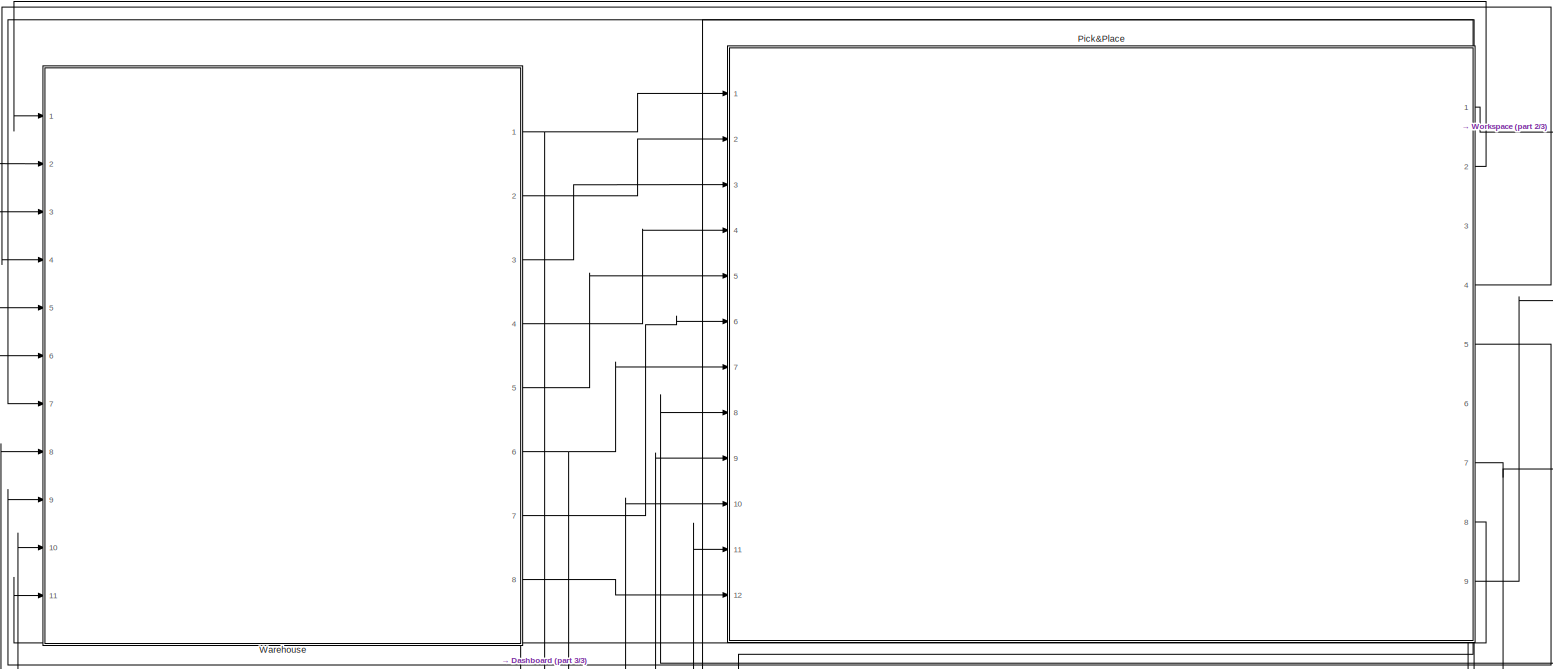
[diagram: root canvas - part 1/3, full width, top band]
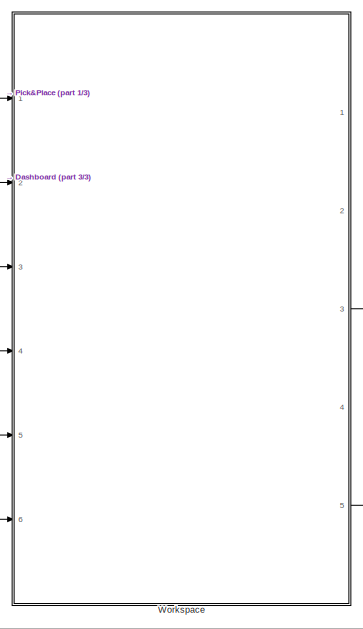
[diagram: root canvas - part 2/3, top right region]
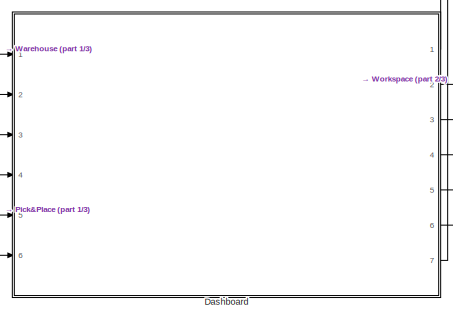
[diagram: root canvas - part 3/3, bottom center region]
MODEL slx_5a5e4ed08772
KIND model
CONFIG AbsTol = auto
CONFIG EnableMultiTasking = off
CONFIG FixedStep = auto
CONFIG MaxStep = auto
CONFIG MinStep = auto
CONFIG RelTol = 1e-3
CONFIG SampleTimeConstraint = Unconstrained
CONFIG Solver = VariableStepAuto
CONFIG SolverName = VariableStepAuto
CONFIG StartTime = 0.0
CONFIG StopTime = inf
BLOCK [ModelReference] Dashboard
  ModelNameDialog = Dashboard
  ModelReferenceVersion = 1.6
  PortSchema = {"entries":[{"content":{"headerSize":38,"margin":15,"minimumSpacing":25,"sides":[{"content":{"connectorIds":["In1","In2","In3","In4","In5","In6"]},"type":"ConnectorPlacement.EquallySpacedRectSide","uuid":"84c4e9a6-c7e3-4ff5-8779-8f22ff7ec920"},{"content":{"connectorIds":["Out1","Out2","Out3","Out4","Out5","Out6","Out7"],"side":"RIGHT"},"type":"ConnectorPlacement.EquallySpacedRectSide","uuid":"3a85...<+367ch>
  Ports = [6, 7]
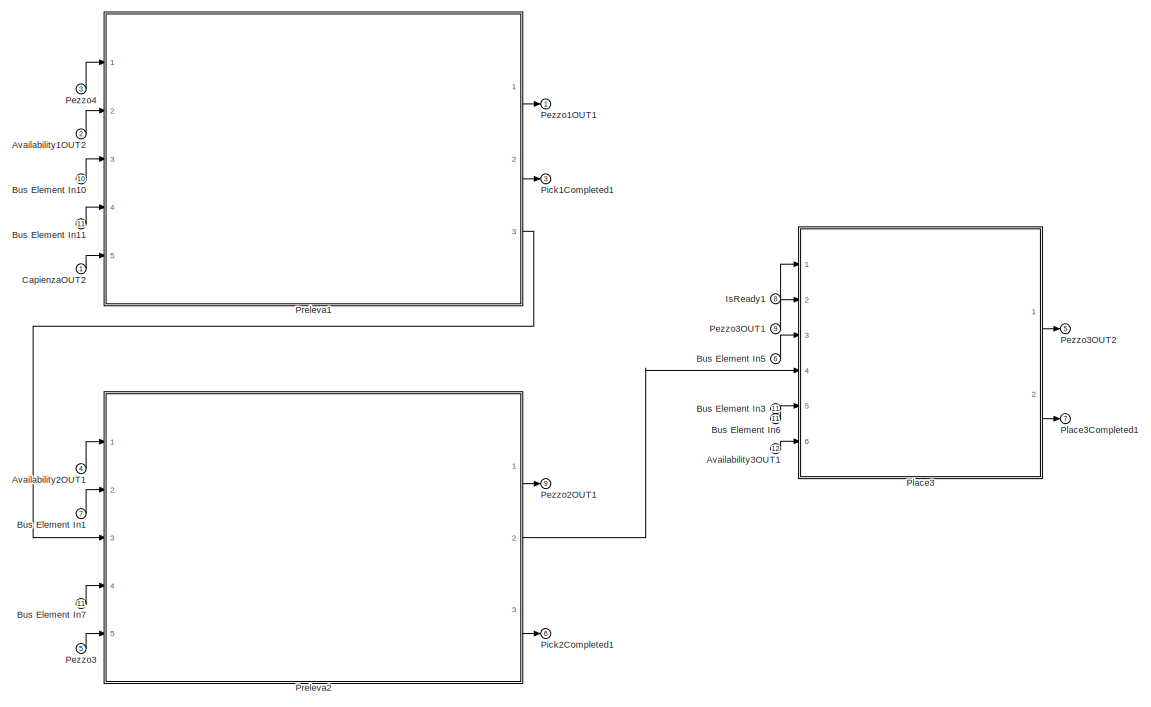
[diagram: Pick&Place - part 1/2, center side, full height]
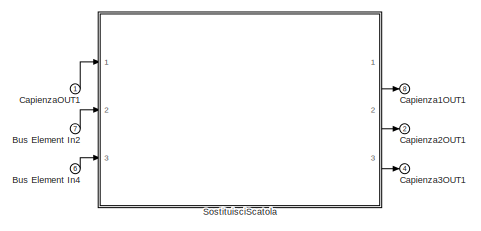
[diagram: Pick&Place - part 2/2, middle right region]
BLOCK [SubSystem] Pick&Place
  PortSchema = {"entries":[{"content":{"headerSize":26,"margin":15,"minimumSpacing":25,"sides":[{"content":{"connectorIds":["In1","In2","In3","In4","In5","In6","In7","In8","In9","In10","In11","In12"]},"type":"ConnectorPlacement.EquallySpacedRectSide","uuid":"cd5611c0-8a30-4803-bae5-8792d5ed3138"},{"content":{"connectorIds":["Out1","Out2","Out3","Out4","Out5","Out6","Out7","Out8","Out9"],"side":"RIGHT"},"type":"C...<+564ch>
  Ports = [12, 9]
  RequestExecContextInheritance = off
BLOCK [Inport] Pick&Place/Availability1OUT2
  IconDisplay = Port number
  Port = 2
BLOCK [Inport] Pick&Place/Availability2OUT1
  IconDisplay = Port number
  Port = 4
BLOCK [Inport] Pick&Place/Availability3OUT1
  IconDisplay = Port number
  Port = 12
BLOCK [Inport] Pick&Place/Bus Element In1
  IconDisplay = Port number
  Port = 7
BLOCK [Inport] Pick&Place/Bus Element In10
  IconDisplay = Port number
  Port = 10
BLOCK [Inport] Pick&Place/Bus Element In11
  IconDisplay = Port number
  Port = 11
BLOCK [Inport] Pick&Place/Bus Element In2
  IconDisplay = Port number
  Port = 7
BLOCK [Inport] Pick&Place/Bus Element In3
  IconDisplay = Port number
  Port = 11
BLOCK [Inport] Pick&Place/Bus Element In4
  IconDisplay = Port number
  Port = 6
BLOCK [Inport] Pick&Place/Bus Element In5
  IconDisplay = Port number
  Port = 6
BLOCK [Inport] Pick&Place/Bus Element In6
  IconDisplay = Port number
  Port = 11
BLOCK [Inport] Pick&Place/Bus Element In7
  IconDisplay = Port number
  Port = 11
BLOCK [Outport] Pick&Place/Capienza1OUT1
  IconDisplay = Port number
  Port = 8
BLOCK [Outport] Pick&Place/Capienza2OUT1
  IconDisplay = Port number
  Port = 2
BLOCK [Outport] Pick&Place/Capienza3OUT1
  IconDisplay = Port number
  Port = 4
BLOCK [Inport] Pick&Place/CapienzaOUT1
  IconDisplay = Port number
BLOCK [Inport] Pick&Place/CapienzaOUT2
  IconDisplay = Port number
BLOCK [Inport] Pick&Place/IsReady1
  IconDisplay = Port number
  Port = 8
BLOCK [Outport] Pick&Place/Pezzo1OUT1
  IconDisplay = Port number
BLOCK [Outport] Pick&Place/Pezzo2OUT1
  IconDisplay = Port number
  Port = 9
BLOCK [Inport] Pick&Place/Pezzo3
  IconDisplay = Port number
  Port = 5
BLOCK [Inport] Pick&Place/Pezzo3OUT1
  IconDisplay = Port number
  Port = 9
BLOCK [Outport] Pick&Place/Pezzo3OUT2
  IconDisplay = Port number
  Port = 5
BLOCK [Inport] Pick&Place/Pezzo4
  IconDisplay = Port number
  Port = 3
BLOCK [Outport] Pick&Place/Pick1Completed1
  IconDisplay = Port number
  Port = 3
BLOCK [Outport] Pick&Place/Pick2Completed1
  IconDisplay = Port number
  Port = 6
BLOCK [ModelReference] Pick&Place/Place3
  ModelNameDialog = Place3
  ModelReferenceVersion = 1.4
  PortSchema = {"entries":[{"content":{"headerSize":38,"margin":15,"minimumSpacing":25,"sides":[{"content":{"connectorIds":["In1","In2","In3","In4","In5","In6"]},"type":"ConnectorPlacement.EquallySpacedRectSide","uuid":"9a4f82f2-5965-44d2-974e-41fbc79ae372"},{"content":{"connectorIds":["Out1","Out2"],"side":"RIGHT"},"type":"ConnectorPlacement.EquallySpacedRectSide","uuid":"61351877-5afa-4df0-ac37-90524965d9bf"},...<+332ch>
  Ports = [6, 2]
BLOCK [Outport] Pick&Place/Place3Completed1
  IconDisplay = Port number
  Port = 7
BLOCK [ModelReference] Pick&Place/Preleva1
  ModelNameDialog = Preleva1
  ModelReferenceVersion = 1.4
  PortSchema = {"entries":[{"content":{"headerSize":38,"margin":15,"minimumSpacing":25,"sides":[{"content":{"connectorIds":["In1","In2","In3","In4","In5"]},"type":"ConnectorPlacement.EquallySpacedRectSide","uuid":"9a4f82f2-5965-44d2-974e-41fbc79ae372"},{"content":{"connectorIds":["Out1","Out2","Out3"],"side":"RIGHT"},"type":"ConnectorPlacement.EquallySpacedRectSide","uuid":"61351877-5afa-4df0-ac37-90524965d9bf"}...<+333ch>
  Ports = [5, 3]
BLOCK [ModelReference] Pick&Place/Preleva2
  ModelNameDialog = Preleva2
  ModelReferenceVersion = 1.4
  PortSchema = {"entries":[{"content":{"headerSize":38,"margin":15,"minimumSpacing":25,"sides":[{"content":{"connectorIds":["In1","In2","In3","In4","In5"]},"type":"ConnectorPlacement.EquallySpacedRectSide","uuid":"9a4f82f2-5965-44d2-974e-41fbc79ae372"},{"content":{"connectorIds":["Out1","Out2","Out3"],"side":"RIGHT"},"type":"ConnectorPlacement.EquallySpacedRectSide","uuid":"61351877-5afa-4df0-ac37-90524965d9bf"}...<+333ch>
  Ports = [5, 3]
BLOCK [ModelReference] Pick&Place/SostituisciScatola
  ModelNameDialog = SostituisciScatola
  ModelReferenceVersion = 1.4
  PortSchema = {"entries":[{"content":{"headerSize":38,"margin":15,"minimumSpacing":25,"sides":[{"content":{"connectorIds":["In1","In2","In3"]},"type":"ConnectorPlacement.EquallySpacedRectSide","uuid":"3b3968ce-44ce-4ff1-b340-b6df1f6f3847"},{"content":{"connectorIds":["Out1","Out2","Out3"],"side":"RIGHT"},"type":"ConnectorPlacement.EquallySpacedRectSide","uuid":"732ea1f5-375c-4ad6-872e-d3b4542e6ff4"},{"content":...<+321ch>
  Ports = [3, 3]
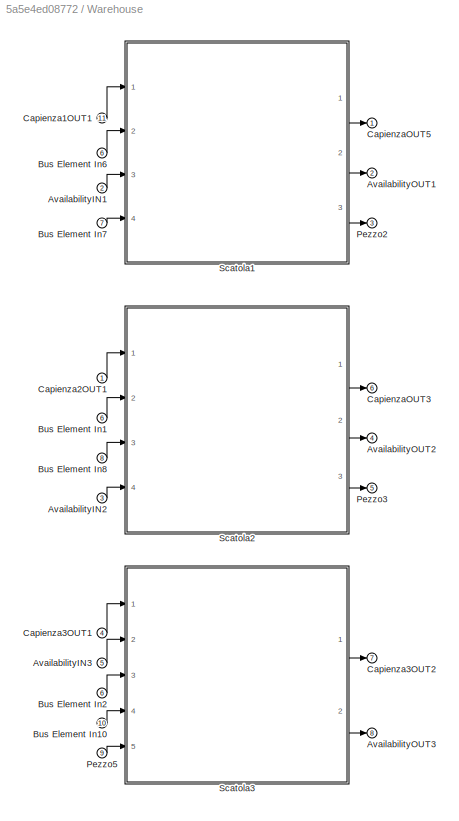
BLOCK [SubSystem] Warehouse
  PortSchema = {"entries":[{"content":{"headerSize":26,"margin":15,"minimumSpacing":25,"sides":[{"content":{"connectorIds":["In1","In2","In3","In4","In5","In6","In7","In8","In9","In10","In11"]},"type":"ConnectorPlacement.EquallySpacedRectSide","uuid":"cd5611c0-8a30-4803-bae5-8792d5ed3138"},{"content":{"connectorIds":["Out1","Out2","Out3","Out4","Out5","Out6","Out7","Out8"],"side":"RIGHT"},"type":"ConnectorPlacem...<+406ch>
  Ports = [11, 8]
  RequestExecContextInheritance = off
BLOCK [Inport] Warehouse/AvailabilityIN1
  IconDisplay = Port number
  Port = 2
BLOCK [Inport] Warehouse/AvailabilityIN2
  IconDisplay = Port number
  Port = 3
BLOCK [Inport] Warehouse/AvailabilityIN3
  IconDisplay = Port number
  Port = 5
BLOCK [Outport] Warehouse/AvailabilityOUT1
  IconDisplay = Port number
  Port = 2
BLOCK [Outport] Warehouse/AvailabilityOUT2
  IconDisplay = Port number
  Port = 4
BLOCK [Outport] Warehouse/AvailabilityOUT3
  IconDisplay = Port number
  Port = 8
BLOCK [Inport] Warehouse/Bus Element In1
  IconDisplay = Port number
  Port = 6
BLOCK [Inport] Warehouse/Bus Element In10
  IconDisplay = Port number
  Port = 10
BLOCK [Inport] Warehouse/Bus Element In2
  IconDisplay = Port number
  Port = 6
BLOCK [Inport] Warehouse/Bus Element In6
  IconDisplay = Port number
  Port = 6
BLOCK [Inport] Warehouse/Bus Element In7
  IconDisplay = Port number
  Port = 7
BLOCK [Inport] Warehouse/Bus Element In8
  IconDisplay = Port number
  Port = 8
BLOCK [Inport] Warehouse/Capienza1OUT1
  IconDisplay = Port number
  Port = 11
BLOCK [Inport] Warehouse/Capienza2OUT1
  IconDisplay = Port number
BLOCK [Inport] Warehouse/Capienza3OUT1
  IconDisplay = Port number
  Port = 4
BLOCK [Outport] Warehouse/Capienza3OUT2
  IconDisplay = Port number
  Port = 7
BLOCK [Outport] Warehouse/CapienzaOUT3
  IconDisplay = Port number
  Port = 6
BLOCK [Outport] Warehouse/CapienzaOUT5
  IconDisplay = Port number
BLOCK [Outport] Warehouse/Pezzo2
  IconDisplay = Port number
  Port = 3
BLOCK [Outport] Warehouse/Pezzo3
  IconDisplay = Port number
  Port = 5
BLOCK [Inport] Warehouse/Pezzo5
  IconDisplay = Port number
  Port = 9
BLOCK [ModelReference] Warehouse/Scatola1
  ModelNameDialog = Scatola1
  ModelReferenceVersion = 1.4
  PortSchema = {"entries":[{"content":{"headerSize":38,"margin":15,"minimumSpacing":25,"sides":[{"content":{"connectorIds":["In1","In2","In3","In4"]},"type":"ConnectorPlacement.EquallySpacedRectSide","uuid":"8ca3f795-bcf3-41f9-ab0e-0c7be44eb4b6"},{"content":{"connectorIds":["Out1","Out2","Out3"],"side":"RIGHT"},"type":"ConnectorPlacement.EquallySpacedRectSide","uuid":"3b3dc70a-b452-493d-8b71-47a0b7c01cc2"},{"con...<+327ch>
  Ports = [4, 3]
BLOCK [ModelReference] Warehouse/Scatola2
  ModelNameDialog = Scatola2
  ModelReferenceVersion = 1.3
  PortSchema = {"entries":[{"content":{"headerSize":38,"margin":15,"minimumSpacing":25,"sides":[{"content":{"connectorIds":["In1","In2","In3","In4"]},"type":"ConnectorPlacement.EquallySpacedRectSide","uuid":"cd5611c0-8a30-4803-bae5-8792d5ed3138"},{"content":{"connectorIds":["Out1","Out2","Out3"],"side":"RIGHT"},"type":"ConnectorPlacement.EquallySpacedRectSide","uuid":"19615e04-708c-4dc8-9217-130af3d4c815"},{"con...<+327ch>
  Ports = [4, 3]
BLOCK [ModelReference] Warehouse/Scatola3
  ModelNameDialog = Scatola3
  ModelReferenceVersion = 1.3
  PortSchema = {"entries":[{"content":{"headerSize":38,"margin":15,"minimumSpacing":25,"sides":[{"content":{"connectorIds":["In1","In2","In3","In4","In5"]},"type":"ConnectorPlacement.EquallySpacedRectSide","uuid":"cd5611c0-8a30-4803-bae5-8792d5ed3138"},{"content":{"connectorIds":["Out1","Out2"],"side":"RIGHT"},"type":"ConnectorPlacement.EquallySpacedRectSide","uuid":"19615e04-708c-4dc8-9217-130af3d4c815"},{"cont...<+326ch>
  Ports = [5, 2]
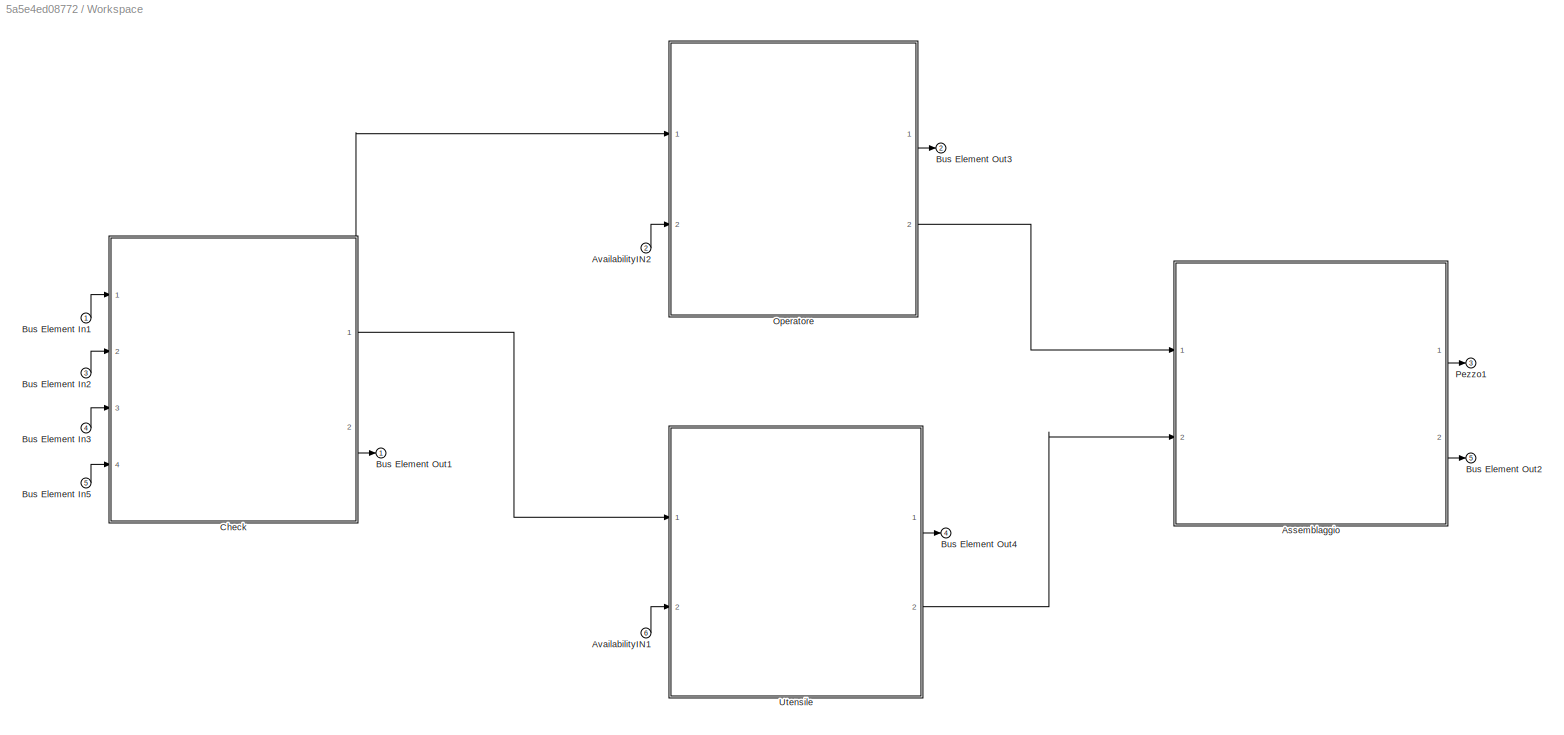
BLOCK [SubSystem] Workspace
  PortSchema = {"entries":[{"content":{"headerSize":26,"margin":15,"minimumSpacing":25,"sides":[{"content":{"connectorIds":["In1","In2","In3","In4","In5","In6"]},"type":"ConnectorPlacement.EquallySpacedRectSide","uuid":"cd5611c0-8a30-4803-bae5-8792d5ed3138"},{"content":{"connectorIds":["Out1","Out2","Out3","Out4","Out5"],"side":"RIGHT"},"type":"ConnectorPlacement.EquallySpacedRectSide","uuid":"19615e04-708c-4dc8...<+353ch>
  Ports = [6, 5]
  RequestExecContextInheritance = off
BLOCK [ModelReference] Workspace/Assemblaggio
  ModelNameDialog = Assemblaggio
  ModelReferenceVersion = 1.2
  PortSchema = {"entries":[{"content":{"headerSize":38,"margin":15,"minimumSpacing":25,"sides":[{"content":{"connectorIds":["In1","In2"]},"type":"ConnectorPlacement.EquallySpacedRectSide","uuid":"cd5611c0-8a30-4803-bae5-8792d5ed3138"},{"content":{"connectorIds":["Out1","Out2"],"side":"RIGHT"},"type":"ConnectorPlacement.EquallySpacedRectSide","uuid":"19615e04-708c-4dc8-9217-130af3d4c815"},{"content":{"connectorId...<+308ch>  <repeated x3 — deduplicated; at blocks: Assemblaggio, Operatore, Utensile>
  Ports = [2, 2]
BLOCK [Inport] Workspace/AvailabilityIN1
  IconDisplay = Port number
  Port = 6
BLOCK [Inport] Workspace/AvailabilityIN2
  IconDisplay = Port number
  Port = 2
BLOCK [Inport] Workspace/Bus Element In1
  IconDisplay = Port number
BLOCK [Inport] Workspace/Bus Element In2
  IconDisplay = Port number
  Port = 3
BLOCK [Inport] Workspace/Bus Element In3
  IconDisplay = Port number
  Port = 4
BLOCK [Inport] Workspace/Bus Element In5
  IconDisplay = Port number
  Port = 5
BLOCK [Outport] Workspace/Bus Element Out1
  IconDisplay = Port number
BLOCK [Outport] Workspace/Bus Element Out2
  IconDisplay = Port number
  Port = 5
BLOCK [Outport] Workspace/Bus Element Out3
  IconDisplay = Port number
  Port = 2
BLOCK [Outport] Workspace/Bus Element Out4
  IconDisplay = Port number
  Port = 4
BLOCK [ModelReference] Workspace/Check
  ModelNameDialog = Check
  ModelReferenceVersion = 1.3
  PortSchema = {"entries":[{"content":{"headerSize":38,"margin":15,"minimumSpacing":25,"sides":[{"content":{"connectorIds":["In1","In2","In3","In4"]},"type":"ConnectorPlacement.EquallySpacedRectSide","uuid":"cd5611c0-8a30-4803-bae5-8792d5ed3138"},{"content":{"connectorIds":["Out1","Out2"],"side":"RIGHT"},"type":"ConnectorPlacement.EquallySpacedRectSide","uuid":"19615e04-708c-4dc8-9217-130af3d4c815"},{"content":{...<+320ch>
  Ports = [4, 2]
BLOCK [ModelReference] Workspace/Operatore
  ModelNameDialog = Operatore
  ModelReferenceVersion = 1.2
  Ports = [2, 2]
BLOCK [Outport] Workspace/Pezzo1
  IconDisplay = Port number
  Port = 3
BLOCK [ModelReference] Workspace/Utensile
  ModelNameDialog = Utensile
  ModelReferenceVersion = 1.2
  Ports = [2, 2]
LINE Dashboard:1 -> Pick&Place:11
LINE Dashboard:2 -> Workspace:2
LINE Dashboard:3 -> Warehouse:2
LINE Dashboard:4 -> Warehouse:3
LINE Dashboard:5 -> Workspace:6
LINE Dashboard:6 -> Workspace:4
LINE Dashboard:7 -> Warehouse:5
LINE Pick&Place/Availability1OUT2:1 -> Pick&Place/Preleva1:2
LINE Pick&Place/Availability2OUT1:1 -> Pick&Place/Preleva2:1
LINE Pick&Place/Availability3OUT1:1 -> Pick&Place/Place3:6
LINE Pick&Place/Bus Element In10:1 -> Pick&Place/Preleva1:3
LINE Pick&Place/Bus Element In11:1 -> Pick&Place/Preleva1:4
LINE Pick&Place/Bus Element In1:1 -> Pick&Place/Preleva2:2
LINE Pick&Place/Bus Element In2:1 -> Pick&Place/SostituisciScatola:2
LINE Pick&Place/Bus Element In4:1 -> Pick&Place/SostituisciScatola:3
LINE Pick&Place/Bus Element In5:1 -> Pick&Place/Place3:3
LINE Pick&Place/Bus Element In6:1 -> Pick&Place/Place3:5
LINE Pick&Place/Bus Element In7:1 -> Pick&Place/Preleva2:4
LINE Pick&Place/CapienzaOUT1:1 -> Pick&Place/SostituisciScatola:1
LINE Pick&Place/CapienzaOUT2:1 -> Pick&Place/Preleva1:5
LINE Pick&Place/IsReady1:1 -> Pick&Place/Place3:1
LINE Pick&Place/Pezzo3:1 -> Pick&Place/Preleva2:5
LINE Pick&Place/Pezzo3OUT1:1 -> Pick&Place/Place3:2
LINE Pick&Place/Pezzo4:1 -> Pick&Place/Preleva1:1
LINE Pick&Place/Place3:1 -> Pick&Place/Pezzo3OUT2:1
LINE Pick&Place/Place3:2 -> Pick&Place/Place3Completed1:1
LINE Pick&Place/Preleva1:1 -> Pick&Place/Pezzo1OUT1:1
LINE Pick&Place/Preleva1:2 -> Pick&Place/Pick1Completed1:1
LINE Pick&Place/Preleva1:3 -> Pick&Place/Preleva2:3
LINE Pick&Place/Preleva2:1 -> Pick&Place/Pezzo2OUT1:1
LINE Pick&Place/Preleva2:2 -> Pick&Place/Place3:4
LINE Pick&Place/Preleva2:3 -> Pick&Place/Pick2Completed1:1
LINE Pick&Place/SostituisciScatola:1 -> Pick&Place/Capienza1OUT1:1
LINE Pick&Place/SostituisciScatola:2 -> Pick&Place/Capienza2OUT1:1
LINE Pick&Place/SostituisciScatola:3 -> Pick&Place/Capienza3OUT1:1
LINE Pick&Place:1 -> Workspace:1
LINE Pick&Place:2 -> Warehouse:1
NET Pick&Place:3 -> Dashboard:4, Warehouse:7
LINE Pick&Place:4 -> Warehouse:4
LINE Pick&Place:5 -> Warehouse:9
NET Pick&Place:6 -> Dashboard:5, Warehouse:8
NET Pick&Place:7 -> Dashboard:6, Pick&Place:10, Warehouse:10, Warehouse:6, Workspace:5
LINE Pick&Place:8 -> Warehouse:11
LINE Pick&Place:9 -> Workspace:3
LINE Warehouse/AvailabilityIN1:1 -> Warehouse/Scatola1:3
LINE Warehouse/AvailabilityIN2:1 -> Warehouse/Scatola2:4
LINE Warehouse/AvailabilityIN3:1 -> Warehouse/Scatola3:2
LINE Warehouse/Bus Element In10:1 -> Warehouse/Scatola3:4
LINE Warehouse/Bus Element In1:1 -> Warehouse/Scatola2:2
LINE Warehouse/Bus Element In2:1 -> Warehouse/Scatola3:3
LINE Warehouse/Bus Element In6:1 -> Warehouse/Scatola1:2
LINE Warehouse/Bus Element In7:1 -> Warehouse/Scatola1:4
LINE Warehouse/Bus Element In8:1 -> Warehouse/Scatola2:3
LINE Warehouse/Capienza1OUT1:1 -> Warehouse/Scatola1:1
LINE Warehouse/Capienza2OUT1:1 -> Warehouse/Scatola2:1
LINE Warehouse/Capienza3OUT1:1 -> Warehouse/Scatola3:1
LINE Warehouse/Pezzo5:1 -> Warehouse/Scatola3:5
LINE Warehouse/Scatola1:1 -> Warehouse/CapienzaOUT5:1
LINE Warehouse/Scatola1:2 -> Warehouse/AvailabilityOUT1:1
LINE Warehouse/Scatola1:3 -> Warehouse/Pezzo2:1
LINE Warehouse/Scatola2:1 -> Warehouse/CapienzaOUT3:1
LINE Warehouse/Scatola2:2 -> Warehouse/AvailabilityOUT2:1
LINE Warehouse/Scatola2:3 -> Warehouse/Pezzo3:1
LINE Warehouse/Scatola3:1 -> Warehouse/Capienza3OUT2:1
LINE Warehouse/Scatola3:2 -> Warehouse/AvailabilityOUT3:1
NET Warehouse:1 -> Dashboard:1, Pick&Place:1
LINE Warehouse:2 -> Pick&Place:2
LINE Warehouse:3 -> Pick&Place:3
LINE Warehouse:4 -> Pick&Place:4
LINE Warehouse:5 -> Pick&Place:5
NET Warehouse:6 -> Dashboard:2, Pick&Place:7
NET Warehouse:7 -> Dashboard:3, Pick&Place:6
LINE Warehouse:8 -> Pick&Place:12
LINE Workspace/Assemblaggio:1 -> Workspace/Pezzo1:1
LINE Workspace/Assemblaggio:2 -> Workspace/Bus Element Out2:1
LINE Workspace/AvailabilityIN1:1 -> Workspace/Utensile:2
LINE Workspace/AvailabilityIN2:1 -> Workspace/Operatore:2
LINE Workspace/Bus Element In1:1 -> Workspace/Check:1
LINE Workspace/Bus Element In2:1 -> Workspace/Check:2
LINE Workspace/Bus Element In3:1 -> Workspace/Check:3
LINE Workspace/Bus Element In5:1 -> Workspace/Check:4
NET Workspace/Check:1 -> Workspace/Operatore:1, Workspace/Utensile:1
LINE Workspace/Check:2 -> Workspace/Bus Element Out1:1
LINE Workspace/Operatore:1 -> Workspace/Bus Element Out3:1
LINE Workspace/Operatore:2 -> Workspace/Assemblaggio:1
LINE Workspace/Utensile:1 -> Workspace/Bus Element Out4:1
LINE Workspace/Utensile:2 -> Workspace/Assemblaggio:2
LINE Workspace:3 -> Pick&Place:9
LINE Workspace:5 -> Pick&Place:8
note: NET lines group one-source signal fan-out (src -> all destinations, sorted); 1:1 wires keep LINE
